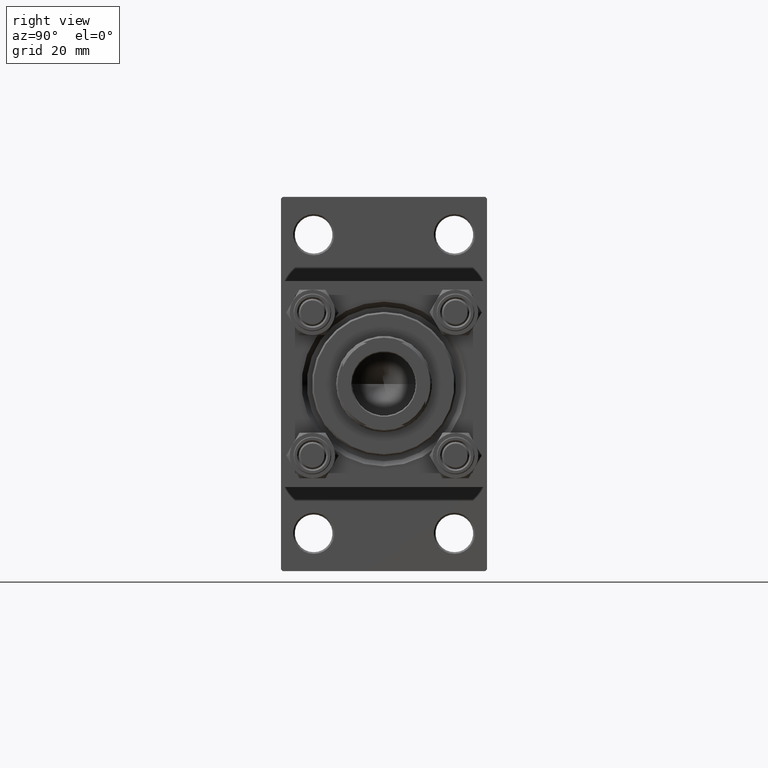
[diagram: clean part render]
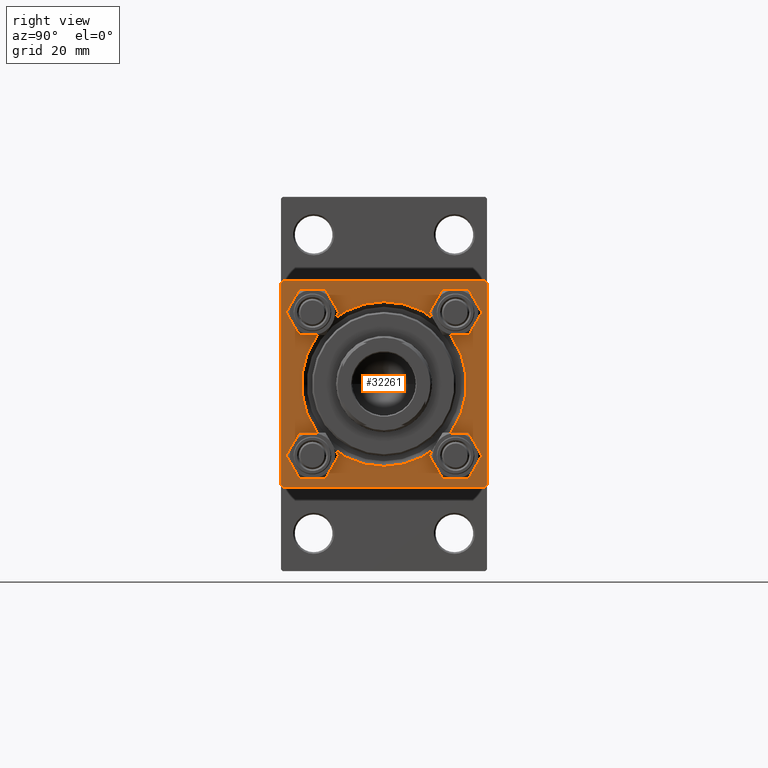
[diagram: same view with one face highlighted and labeled with its STEP entity id]
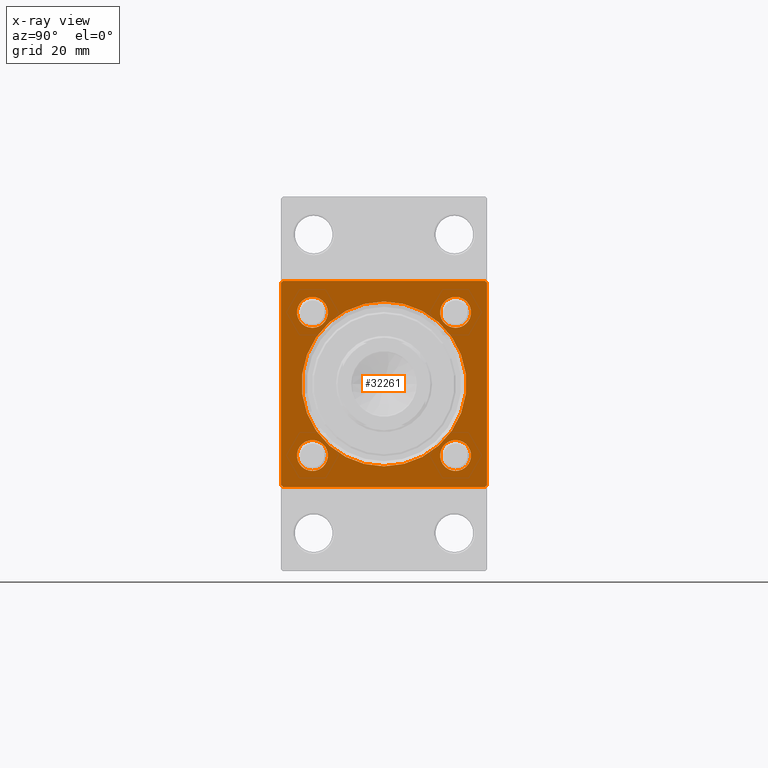
[diagram: x-ray of the same camera — body ghosted, the highlighted face saturated]
A machine part, right view. The second image highlights one B-rep face of the part: STEP entity #32261.
The next image is the same camera in x-ray: the body ghosted, the highlighted face saturated — about 0% of this face is hidden behind the body in this view.
In plain terms, the highlighted planar face has unit normal (-1, 0, 0).
Its self-contained STEP definition (entity closure, byte-faithful):
#41 = DIRECTION ( 'NONE',  ( -1.000000000000000000, 0.000000000000000000, -0.000000000000000000 ) ) ;
#667 = VERTEX_POINT ( 'NONE', #33812 ) ;
#1725 = VECTOR ( 'NONE', #35148, 1000.000000000000000 ) ;
#1755 = AXIS2_PLACEMENT_3D ( 'NONE', #3383, #18815, #38244 ) ;
#2295 = CARTESIAN_POINT ( 'NONE',  ( 148.0000000000000000, 0.000000000000000000, 0.000000000000000000 ) ) ;
#2469 = CARTESIAN_POINT ( 'NONE',  ( 148.0000000000000000, -20.84999999999999076, -20.85000000000000497 ) ) ;
#2636 = CARTESIAN_POINT ( 'NONE',  ( 148.0000000000000000, 29.50000000000000000, -29.99999999999999289 ) ) ;
#2823 = EDGE_CURVE ( 'NONE', #16609, #42661, #28558, .T. ) ;
#2875 = FACE_BOUND ( 'NONE', #19069, .T. ) ;
#2994 = VECTOR ( 'NONE', #41160, 1000.000000000000000 ) ;
#3255 = EDGE_CURVE ( 'NONE', #11899, #37024, #40661, .T. ) ;
#3343 = EDGE_CURVE ( 'NONE', #45410, #22018, #43314, .T. ) ;
#3383 = CARTESIAN_POINT ( 'NONE',  ( 148.0000000000000000, -20.84999999999999076, -20.85000000000000497 ) ) ;
#3464 = CARTESIAN_POINT ( 'NONE',  ( 148.0000000000000000, 30.00000000000000000, 30.00000000000000000 ) ) ;
#3624 = DIRECTION ( 'NONE',  ( -0.000000000000000000, 0.000000000000000000, 1.000000000000000000 ) ) ;
#4107 = EDGE_CURVE ( 'NONE', #667, #19403, #44437, .T. ) ;
#4197 = CARTESIAN_POINT ( 'NONE',  ( 148.0000000000000000, 30.00000000000000000, -29.99999999999999289 ) ) ;
#4322 = CARTESIAN_POINT ( 'NONE',  ( 148.0000000000000000, 30.00000000000000000, -29.49999999999999289 ) ) ;
#4622 = AXIS2_PLACEMENT_3D ( 'NONE', #14652, #48789, #34117 ) ;
#6127 = CARTESIAN_POINT ( 'NONE',  ( 148.0000000000000000, -20.84999999999999076, -16.35000000000002629 ) ) ;
#6338 = EDGE_CURVE ( 'NONE', #16296, #33937, #39850, .T. ) ;
#6623 = ORIENTED_EDGE ( 'NONE', *, *, #33728, .T. ) ;
#6972 = CARTESIAN_POINT ( 'NONE',  ( 148.0000000000000000, -30.00000000000000000, 29.50000000000001776 ) ) ;
#7054 = DIRECTION ( 'NONE',  ( 0.000000000000000000, 0.000000000000000000, 1.000000000000000000 ) ) ;
#7569 = DIRECTION ( 'NONE',  ( -1.000000000000000000, 0.000000000000000000, -0.000000000000000000 ) ) ;
#8027 = AXIS2_PLACEMENT_3D ( 'NONE', #2295, #48299, #40445 ) ;
#8253 = CIRCLE ( 'NONE', #20344, 4.499999999999976019 ) ;
#8349 = VERTEX_POINT ( 'NONE', #44565 ) ;
#9260 = ORIENTED_EDGE ( 'NONE', *, *, #40565, .T. ) ;
#9756 = ORIENTED_EDGE ( 'NONE', *, *, #3343, .T. ) ;
#9767 = ORIENTED_EDGE ( 'NONE', *, *, #6338, .T. ) ;
#9768 = CARTESIAN_POINT ( 'NONE',  ( 148.0000000000000000, -20.84999999999999076, 25.34999999999998010 ) ) ;
#10182 = CIRCLE ( 'NONE', #26335, 4.499999999999976019 ) ;
#10323 = CARTESIAN_POINT ( 'NONE',  ( 148.0000000000000000, 30.00000000000000000, 30.00000000000000000 ) ) ;
#10456 = FACE_BOUND ( 'NONE', #37151, .T. ) ;
#10525 = CARTESIAN_POINT ( 'NONE',  ( 148.0000000000000000, 30.00000000000000000, -29.49999999999997868 ) ) ;
#11521 = VERTEX_POINT ( 'NONE', #48997 ) ;
#11899 = VERTEX_POINT ( 'NONE', #26686 ) ;
#12399 = CARTESIAN_POINT ( 'NONE',  ( 148.0000000000000000, -20.84999999999999076, 20.85000000000000497 ) ) ;
#12412 = LINE ( 'NONE', #4322, #18401 ) ;
#12988 = ORIENTED_EDGE ( 'NONE', *, *, #4107, .T. ) ;
#13124 = LINE ( 'NONE', #33343, #34658 ) ;
#13289 = EDGE_CURVE ( 'NONE', #35886, #45410, #14367, .T. ) ;
#13336 = DIRECTION ( 'NONE',  ( 0.000000000000000000, 0.7071067811865474617, -0.7071067811865474617 ) ) ;
#13451 = ORIENTED_EDGE ( 'NONE', *, *, #23684, .F. ) ;
#14162 = CARTESIAN_POINT ( 'NONE',  ( 148.0000000000000000, 29.50000000000000000, 30.00000000000000000 ) ) ;
#14265 = CIRCLE ( 'NONE', #36094, 23.99999999999996803 ) ;
#14367 = LINE ( 'NONE', #10323, #2994 ) ;
#14652 = CARTESIAN_POINT ( 'NONE',  ( 148.0000000000000000, 20.84999999999999787, -20.85000000000000142 ) ) ;
#15002 = PLANE ( 'NONE',  #49404 ) ;
#15145 = DIRECTION ( 'NONE',  ( 0.000000000000000000, 0.000000000000000000, 1.000000000000000000 ) ) ;
#15519 = VERTEX_POINT ( 'NONE', #10525 ) ;
#16072 = DIRECTION ( 'NONE',  ( 0.000000000000000000, 0.000000000000000000, 1.000000000000000000 ) ) ;
#16195 = DIRECTION ( 'NONE',  ( 0.000000000000000000, 0.000000000000000000, 1.000000000000000000 ) ) ;
#16296 = VERTEX_POINT ( 'NONE', #44456 ) ;
#16389 = CARTESIAN_POINT ( 'NONE',  ( 148.0000000000000000, -29.50000000000002487, 29.99999999999999289 ) ) ;
#16609 = VERTEX_POINT ( 'NONE', #41517 ) ;
#16755 = CIRCLE ( 'NONE', #4622, 4.499999999999976019 ) ;
#17330 = CARTESIAN_POINT ( 'NONE',  ( 148.0000000000000000, 0.000000000000000000, 0.000000000000000000 ) ) ;
#18093 = DIRECTION ( 'NONE',  ( 0.000000000000000000, 0.000000000000000000, 1.000000000000000000 ) ) ;
#18401 = VECTOR ( 'NONE', #46787, 1000.000000000000114 ) ;
#18559 = FACE_BOUND ( 'NONE', #42333, .T. ) ;
#18562 = CARTESIAN_POINT ( 'NONE',  ( 148.0000000000000000, -30.00000000000000000, 29.99999999999999289 ) ) ;
#18815 = DIRECTION ( 'NONE',  ( -1.000000000000000000, 0.000000000000000000, -0.000000000000000000 ) ) ;
#19063 = ORIENTED_EDGE ( 'NONE', *, *, #28451, .T. ) ;
#19069 = EDGE_LOOP ( 'NONE', ( #19744, #19063 ) ) ;
#19403 = VERTEX_POINT ( 'NONE', #49043 ) ;
#19568 = ORIENTED_EDGE ( 'NONE', *, *, #42911, .T. ) ;
#19690 = AXIS2_PLACEMENT_3D ( 'NONE', #29701, #41319, #22364 ) ;
#19744 = ORIENTED_EDGE ( 'NONE', *, *, #3255, .T. ) ;
#20318 = DIRECTION ( 'NONE',  ( -0.000000000000000000, -0.7071067811865474617, -0.7071067811865474617 ) ) ;
#20344 = AXIS2_PLACEMENT_3D ( 'NONE', #30574, #41675, #7054 ) ;
#21926 = DIRECTION ( 'NONE',  ( 0.000000000000000000, 0.000000000000000000, 1.000000000000000000 ) ) ;
#22018 = VERTEX_POINT ( 'NONE', #6972 ) ;
#22364 = DIRECTION ( 'NONE',  ( 0.000000000000000000, 0.000000000000000000, 1.000000000000000000 ) ) ;
#22739 = AXIS2_PLACEMENT_3D ( 'NONE', #46969, #7569, #15145 ) ;
#23379 = ORIENTED_EDGE ( 'NONE', *, *, #42246, .T. ) ;
#23538 = EDGE_CURVE ( 'NONE', #36260, #15519, #34046, .T. ) ;
#23684 = EDGE_CURVE ( 'NONE', #34398, #19403, #47156, .T. ) ;
#25380 = CARTESIAN_POINT ( 'NONE',  ( 148.0000000000000000, 0.000000000000000000, -23.99999999999996803 ) ) ;
#25673 = DIRECTION ( 'NONE',  ( -1.000000000000000000, 0.000000000000000000, -0.000000000000000000 ) ) ;
#25711 = ORIENTED_EDGE ( 'NONE', *, *, #2823, .T. ) ;
#26335 = AXIS2_PLACEMENT_3D ( 'NONE', #46179, #42630, #16072 ) ;
#26391 = FACE_OUTER_BOUND ( 'NONE', #34088, .T. ) ;
#26686 = CARTESIAN_POINT ( 'NONE',  ( 148.0000000000000000, 20.84999999999999787, 16.35000000000002274 ) ) ;
#28017 = ORIENTED_EDGE ( 'NONE', *, *, #32375, .T. ) ;
#28052 = EDGE_CURVE ( 'NONE', #22018, #667, #44345, .T. ) ;
#28200 = DIRECTION ( 'NONE',  ( 0.000000000000000000, -1.000000000000000000, -1.156482317317871478E-16 ) ) ;
#28211 = VECTOR ( 'NONE', #28200, 1000.000000000000000 ) ;
#28451 = EDGE_CURVE ( 'NONE', #37024, #11899, #44519, .T. ) ;
#28558 = CIRCLE ( 'NONE', #46313, 4.499999999999976019 ) ;
#29701 = CARTESIAN_POINT ( 'NONE',  ( 148.0000000000000000, 20.84999999999999787, 20.85000000000000142 ) ) ;
#29856 = CARTESIAN_POINT ( 'NONE',  ( 148.0000000000000000, 20.84999999999999787, 25.34999999999997655 ) ) ;
#29935 = DIRECTION ( 'NONE',  ( -1.000000000000000000, 0.000000000000000000, -0.000000000000000000 ) ) ;
#30574 = CARTESIAN_POINT ( 'NONE',  ( 148.0000000000000000, -20.84999999999999076, 20.85000000000000497 ) ) ;
#30692 = FACE_BOUND ( 'NONE', #37983, .T. ) ;
#31734 = ORIENTED_EDGE ( 'NONE', *, *, #13289, .T. ) ;
#32261 = ADVANCED_FACE ( 'NONE', ( #10456, #18559, #2875, #30692, #37999, #26391 ), #15002, .F. ) ;
#32375 = EDGE_CURVE ( 'NONE', #42661, #16609, #32422, .T. ) ;
#32422 = CIRCLE ( 'NONE', #1755, 4.499999999999976019 ) ;
#33304 = DIRECTION ( 'NONE',  ( -1.000000000000000000, 0.000000000000000000, -0.000000000000000000 ) ) ;
#33343 = CARTESIAN_POINT ( 'NONE',  ( 148.0000000000000000, 29.50000000000000000, 30.00000000000000000 ) ) ;
#33728 = EDGE_CURVE ( 'NONE', #33937, #16296, #8253, .T. ) ;
#33812 = CARTESIAN_POINT ( 'NONE',  ( 148.0000000000000000, -30.00000000000000000, -29.49999999999998579 ) ) ;
#33937 = VERTEX_POINT ( 'NONE', #9768 ) ;
#34046 = LINE ( 'NONE', #3464, #41926 ) ;
#34088 = EDGE_LOOP ( 'NONE', ( #41521, #12988, #13451, #19568, #34657, #46120, #31734, #9756 ) ) ;
#34117 = DIRECTION ( 'NONE',  ( 0.000000000000000000, 0.000000000000000000, 1.000000000000000000 ) ) ;
#34398 = VERTEX_POINT ( 'NONE', #2636 ) ;
#34657 = ORIENTED_EDGE ( 'NONE', *, *, #23538, .F. ) ;
#34658 = VECTOR ( 'NONE', #43968, 1000.000000000000114 ) ;
#34999 = VECTOR ( 'NONE', #20318, 1000.000000000000114 ) ;
#35148 = DIRECTION ( 'NONE',  ( 0.000000000000000000, 0.000000000000000000, -1.000000000000000000 ) ) ;
#35886 = VERTEX_POINT ( 'NONE', #14162 ) ;
#35964 = CARTESIAN_POINT ( 'NONE',  ( 148.0000000000000000, -30.00000000000000000, 29.50000000000001776 ) ) ;
#36094 = AXIS2_PLACEMENT_3D ( 'NONE', #17330, #25673, #18093 ) ;
#36260 = VERTEX_POINT ( 'NONE', #40640 ) ;
#37024 = VERTEX_POINT ( 'NONE', #29856 ) ;
#37151 = EDGE_LOOP ( 'NONE', ( #25711, #28017 ) ) ;
#37681 = VERTEX_POINT ( 'NONE', #47625 ) ;
#37983 = EDGE_LOOP ( 'NONE', ( #9767, #6623 ) ) ;
#37999 = FACE_BOUND ( 'NONE', #40371, .T. ) ;
#38244 = DIRECTION ( 'NONE',  ( 0.000000000000000000, 0.000000000000000000, 1.000000000000000000 ) ) ;
#38414 = EDGE_CURVE ( 'NONE', #11521, #37681, #10182, .T. ) ;
#38573 = DIRECTION ( 'NONE',  ( 0.000000000000000000, 0.000000000000000000, -1.000000000000000000 ) ) ;
#38987 = ORIENTED_EDGE ( 'NONE', *, *, #46351, .T. ) ;
#39673 = ORIENTED_EDGE ( 'NONE', *, *, #38414, .T. ) ;
#39850 = CIRCLE ( 'NONE', #47945, 4.499999999999976019 ) ;
#40306 = CIRCLE ( 'NONE', #8027, 23.99999999999996803 ) ;
#40371 = EDGE_LOOP ( 'NONE', ( #38987, #9260 ) ) ;
#40445 = DIRECTION ( 'NONE',  ( 0.000000000000000000, 0.000000000000000000, 1.000000000000000000 ) ) ;
#40565 = EDGE_CURVE ( 'NONE', #8349, #46655, #14265, .T. ) ;
#40640 = CARTESIAN_POINT ( 'NONE',  ( 148.0000000000000000, 30.00000000000000000, 29.50000000000000000 ) ) ;
#40661 = CIRCLE ( 'NONE', #19690, 4.499999999999976019 ) ;
#41160 = DIRECTION ( 'NONE',  ( 0.000000000000000000, -1.000000000000000000, -1.156482317317871478E-16 ) ) ;
#41319 = DIRECTION ( 'NONE',  ( -1.000000000000000000, 0.000000000000000000, -0.000000000000000000 ) ) ;
#41517 = CARTESIAN_POINT ( 'NONE',  ( 148.0000000000000000, -20.84999999999999076, -25.34999999999998010 ) ) ;
#41521 = ORIENTED_EDGE ( 'NONE', *, *, #28052, .T. ) ;
#41675 = DIRECTION ( 'NONE',  ( -1.000000000000000000, 0.000000000000000000, -0.000000000000000000 ) ) ;
#41926 = VECTOR ( 'NONE', #38573, 1000.000000000000000 ) ;
#42051 = CARTESIAN_POINT ( 'NONE',  ( 148.0000000000000000, 0.000000000000000000, 0.000000000000000000 ) ) ;
#42246 = EDGE_CURVE ( 'NONE', #37681, #11521, #16755, .T. ) ;
#42333 = EDGE_LOOP ( 'NONE', ( #39673, #23379 ) ) ;
#42630 = DIRECTION ( 'NONE',  ( -1.000000000000000000, 0.000000000000000000, -0.000000000000000000 ) ) ;
#42661 = VERTEX_POINT ( 'NONE', #6127 ) ;
#42911 = EDGE_CURVE ( 'NONE', #34398, #15519, #12412, .T. ) ;
#43314 = LINE ( 'NONE', #35964, #34999 ) ;
#43968 = DIRECTION ( 'NONE',  ( 0.000000000000000000, -0.7071067811865474617, 0.7071067811865474617 ) ) ;
#44345 = LINE ( 'NONE', #18562, #1725 ) ;
#44437 = LINE ( 'NONE', #47483, #47127 ) ;
#44456 = CARTESIAN_POINT ( 'NONE',  ( 148.0000000000000000, -20.84999999999999076, 16.35000000000002629 ) ) ;
#44519 = CIRCLE ( 'NONE', #22739, 4.499999999999976019 ) ;
#44565 = CARTESIAN_POINT ( 'NONE',  ( 148.0000000000000000, 2.939152317953644345E-15, 23.99999999999996803 ) ) ;
#45410 = VERTEX_POINT ( 'NONE', #16389 ) ;
#46120 = ORIENTED_EDGE ( 'NONE', *, *, #49940, .T. ) ;
#46179 = CARTESIAN_POINT ( 'NONE',  ( 148.0000000000000000, 20.84999999999999787, -20.85000000000000142 ) ) ;
#46313 = AXIS2_PLACEMENT_3D ( 'NONE', #2469, #33304, #21926 ) ;
#46351 = EDGE_CURVE ( 'NONE', #46655, #8349, #40306, .T. ) ;
#46655 = VERTEX_POINT ( 'NONE', #25380 ) ;
#46787 = DIRECTION ( 'NONE',  ( -0.000000000000000000, 0.7071067811865474617, 0.7071067811865474617 ) ) ;
#46969 = CARTESIAN_POINT ( 'NONE',  ( 148.0000000000000000, 20.84999999999999787, 20.85000000000000142 ) ) ;
#47127 = VECTOR ( 'NONE', #13336, 1000.000000000000114 ) ;
#47156 = LINE ( 'NONE', #4197, #28211 ) ;
#47483 = CARTESIAN_POINT ( 'NONE',  ( 148.0000000000000000, -29.50000000000000000, -30.00000000000000000 ) ) ;
#47625 = CARTESIAN_POINT ( 'NONE',  ( 148.0000000000000000, 20.84999999999999787, -16.35000000000002274 ) ) ;
#47945 = AXIS2_PLACEMENT_3D ( 'NONE', #12399, #41, #16195 ) ;
#48299 = DIRECTION ( 'NONE',  ( -1.000000000000000000, 0.000000000000000000, -0.000000000000000000 ) ) ;
#48789 = DIRECTION ( 'NONE',  ( -1.000000000000000000, 0.000000000000000000, -0.000000000000000000 ) ) ;
#48997 = CARTESIAN_POINT ( 'NONE',  ( 148.0000000000000000, 20.84999999999999787, -25.34999999999997655 ) ) ;
#49043 = CARTESIAN_POINT ( 'NONE',  ( 148.0000000000000000, -29.50000000000000000, -30.00000000000000000 ) ) ;
#49404 = AXIS2_PLACEMENT_3D ( 'NONE', #42051, #29935, #3624 ) ;
#49940 = EDGE_CURVE ( 'NONE', #36260, #35886, #13124, .T. ) ;